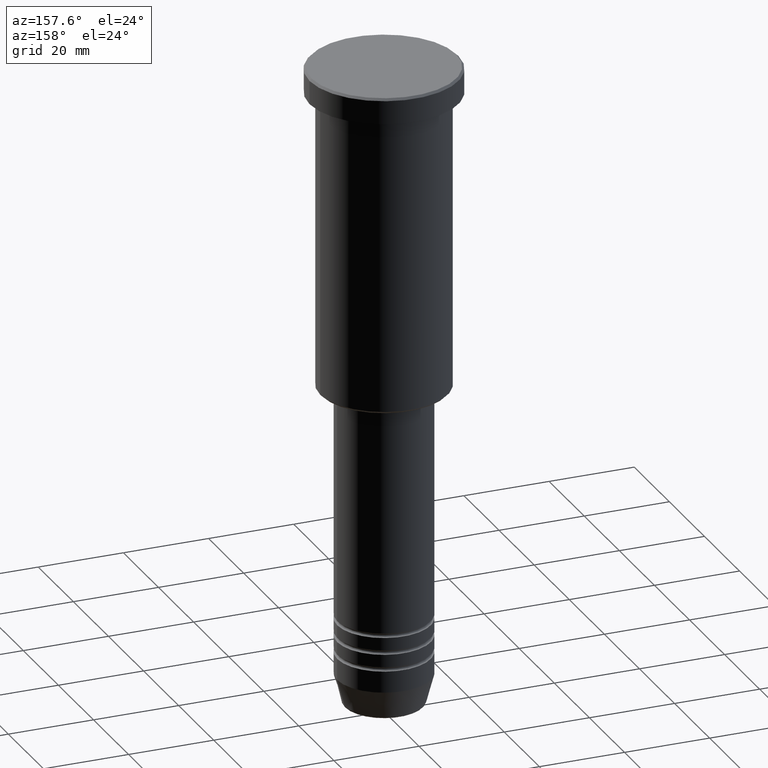
[diagram: clean part render]
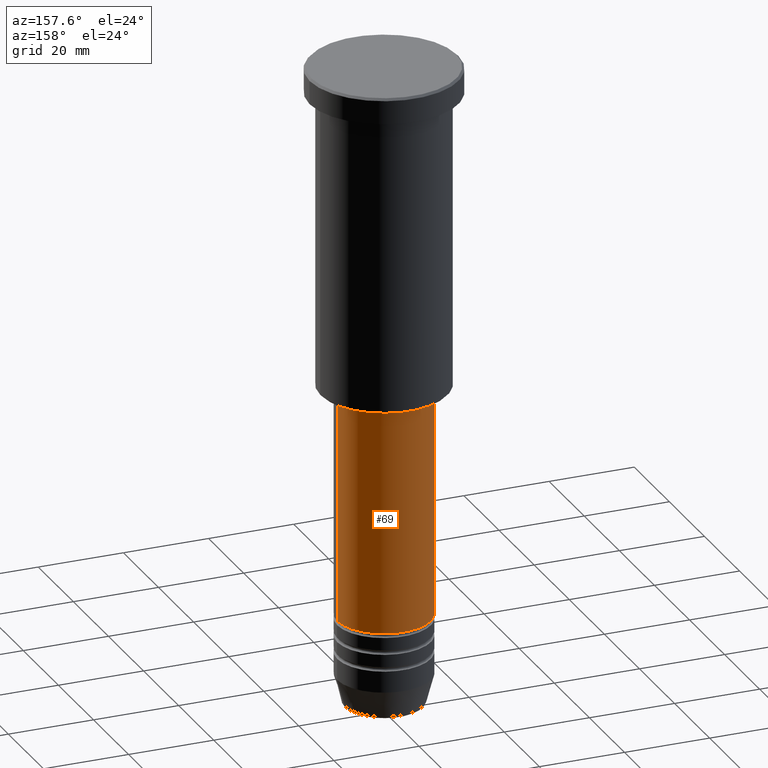
[diagram: same view with one face highlighted and labeled with its STEP entity id]
A machine part, auxiliary view. The second image highlights one B-rep face of the part: STEP entity #69.
In plain terms, the highlighted cylindrical surface (partial cylindrical patch) has radius 11 mm, axis along (-0, -0, 1).
Its self-contained STEP definition (entity closure, byte-faithful):
#15 = AXIS2_PLACEMENT_3D ( 'NONE', #158, #1149, #515 ) ;
#18 = AXIS2_PLACEMENT_3D ( 'NONE', #1154, #687, #595 ) ;
#28 = CARTESIAN_POINT ( 'NONE',  ( -11.00000000000000000, 1.347111479062088405E-15, -129.9999999999998863 ) ) ;
#37 = VERTEX_POINT ( 'NONE', #307 ) ;
#69 = ADVANCED_FACE ( 'NONE', ( #973 ), #247, .T. ) ;
#78 = EDGE_CURVE ( 'NONE', #928, #766, #986, .T. ) ;
#120 = CARTESIAN_POINT ( 'NONE',  ( 0.000000000000000000, 0.000000000000000000, -77.00000000000001421 ) ) ;
#158 = CARTESIAN_POINT ( 'NONE',  ( 0.000000000000000000, 0.000000000000000000, 0.000000000000000000 ) ) ;
#205 = DIRECTION ( 'NONE',  ( 1.000000000000000000, 0.000000000000000000, 0.000000000000000000 ) ) ;
#214 = VECTOR ( 'NONE', #575, 1000.000000000000000 ) ;
#224 = CARTESIAN_POINT ( 'NONE',  ( -11.00000000000000000, 1.347111479062088405E-15, 0.000000000000000000 ) ) ;
#233 = VECTOR ( 'NONE', #1127, 1000.000000000000000 ) ;
#247 = CYLINDRICAL_SURFACE ( 'NONE', #15, 11.00000000000000000 ) ;
#307 = CARTESIAN_POINT ( 'NONE',  ( 11.00000000000000000, 0.000000000000000000, -77.00000000000001421 ) ) ;
#316 = CARTESIAN_POINT ( 'NONE',  ( -11.00000000000000000, 1.347111479062088405E-15, -77.00000000000001421 ) ) ;
#395 = DIRECTION ( 'NONE',  ( -0.000000000000000000, -0.000000000000000000, 1.000000000000000000 ) ) ;
#412 = LINE ( 'NONE', #1135, #233 ) ;
#442 = EDGE_CURVE ( 'NONE', #928, #37, #412, .T. ) ;
#515 = DIRECTION ( 'NONE',  ( 1.000000000000000000, 0.000000000000000000, 0.000000000000000000 ) ) ;
#520 = CARTESIAN_POINT ( 'NONE',  ( 11.00000000000000000, 0.000000000000000000, -129.9999999999998863 ) ) ;
#572 = VERTEX_POINT ( 'NONE', #316 ) ;
#575 = DIRECTION ( 'NONE',  ( -0.000000000000000000, -0.000000000000000000, 1.000000000000000000 ) ) ;
#595 = DIRECTION ( 'NONE',  ( 1.000000000000000000, 0.000000000000000000, 0.000000000000000000 ) ) ;
#663 = LINE ( 'NONE', #224, #214 ) ;
#687 = DIRECTION ( 'NONE',  ( -0.000000000000000000, -0.000000000000000000, 1.000000000000000000 ) ) ;
#710 = EDGE_CURVE ( 'NONE', #37, #572, #1162, .T. ) ;
#718 = ORIENTED_EDGE ( 'NONE', *, *, #442, .F. ) ;
#766 = VERTEX_POINT ( 'NONE', #28 ) ;
#770 = ORIENTED_EDGE ( 'NONE', *, *, #710, .F. ) ;
#776 = AXIS2_PLACEMENT_3D ( 'NONE', #120, #395, #205 ) ;
#928 = VERTEX_POINT ( 'NONE', #520 ) ;
#969 = ORIENTED_EDGE ( 'NONE', *, *, #1090, .T. ) ;
#973 = FACE_OUTER_BOUND ( 'NONE', #1009, .T. ) ;
#986 = CIRCLE ( 'NONE', #18, 11.00000000000000000 ) ;
#1009 = EDGE_LOOP ( 'NONE', ( #1094, #969, #770, #718 ) ) ;
#1090 = EDGE_CURVE ( 'NONE', #766, #572, #663, .T. ) ;
#1094 = ORIENTED_EDGE ( 'NONE', *, *, #78, .T. ) ;
#1127 = DIRECTION ( 'NONE',  ( -0.000000000000000000, -0.000000000000000000, 1.000000000000000000 ) ) ;
#1135 = CARTESIAN_POINT ( 'NONE',  ( 11.00000000000000000, 0.000000000000000000, 0.000000000000000000 ) ) ;
#1149 = DIRECTION ( 'NONE',  ( -0.000000000000000000, -0.000000000000000000, 1.000000000000000000 ) ) ;
#1154 = CARTESIAN_POINT ( 'NONE',  ( 0.000000000000000000, 0.000000000000000000, -129.9999999999998863 ) ) ;
#1162 = CIRCLE ( 'NONE', #776, 11.00000000000000000 ) ;